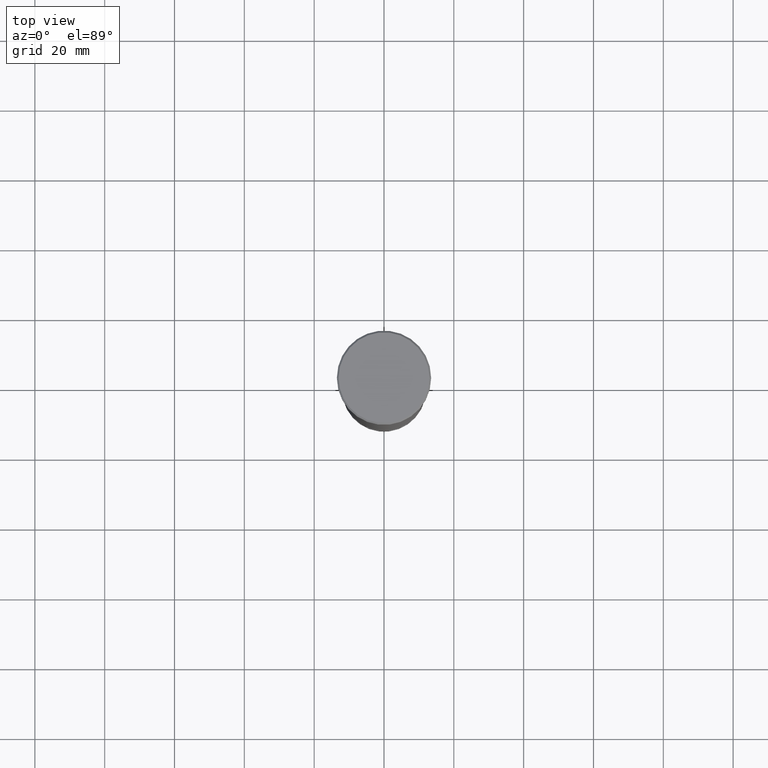
[diagram: clean part render]
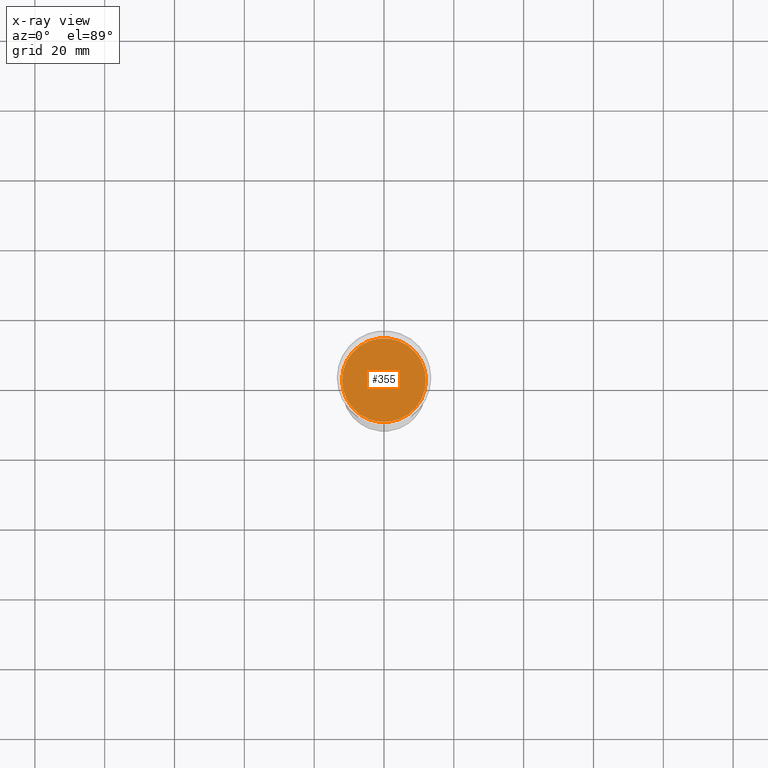
[diagram: x-ray — body ghosted, one internal face saturated and labeled with its STEP entity id]
A machine part, top view, then the same camera in x-ray: the body is ghosted and one INTERNAL B-rep face — a face not visible from any outside direction — is saturated and labeled: STEP entity #355.
In plain terms, the highlighted planar face has unit normal (0, 0, -1).
Its self-contained STEP definition (entity closure, byte-faithful):
#26 = AXIS2_PLACEMENT_3D ( 'NONE', #1033, #845, #395 ) ;
#33 = EDGE_LOOP ( 'NONE', ( #858, #1045 ) ) ;
#80 = DIRECTION ( 'NONE',  ( -1.000000000000000000, 0.000000000000000000, 0.000000000000000000 ) ) ;
#137 = CARTESIAN_POINT ( 'NONE',  ( -12.00000000000000178, 1.469576158976823947E-15, -41.99999999999999289 ) ) ;
#142 = VERTEX_POINT ( 'NONE', #890 ) ;
#324 = FACE_OUTER_BOUND ( 'NONE', #33, .T. ) ;
#344 = DIRECTION ( 'NONE',  ( 0.000000000000000000, 0.000000000000000000, -1.000000000000000000 ) ) ;
#346 = EDGE_CURVE ( 'NONE', #142, #592, #1012, .T. ) ;
#355 = ADVANCED_FACE ( 'NONE', ( #324 ), #936, .T. ) ;
#395 = DIRECTION ( 'NONE',  ( -1.000000000000000000, 0.000000000000000000, 0.000000000000000000 ) ) ;
#399 = EDGE_CURVE ( 'NONE', #592, #142, #606, .T. ) ;
#466 = CARTESIAN_POINT ( 'NONE',  ( 0.000000000000000000, 0.000000000000000000, -41.99999999999999289 ) ) ;
#512 = AXIS2_PLACEMENT_3D ( 'NONE', #965, #525, #80 ) ;
#525 = DIRECTION ( 'NONE',  ( 0.000000000000000000, 0.000000000000000000, -1.000000000000000000 ) ) ;
#592 = VERTEX_POINT ( 'NONE', #137 ) ;
#606 = CIRCLE ( 'NONE', #26, 12.00000000000000178 ) ;
#813 = AXIS2_PLACEMENT_3D ( 'NONE', #466, #344, #1122 ) ;
#845 = DIRECTION ( 'NONE',  ( 0.000000000000000000, 0.000000000000000000, -1.000000000000000000 ) ) ;
#858 = ORIENTED_EDGE ( 'NONE', *, *, #346, .T. ) ;
#890 = CARTESIAN_POINT ( 'NONE',  ( 12.00000000000000178, 0.000000000000000000, -41.99999999999999289 ) ) ;
#936 = PLANE ( 'NONE',  #813 ) ;
#965 = CARTESIAN_POINT ( 'NONE',  ( 0.000000000000000000, 0.000000000000000000, -41.99999999999999289 ) ) ;
#1012 = CIRCLE ( 'NONE', #512, 12.00000000000000178 ) ;
#1033 = CARTESIAN_POINT ( 'NONE',  ( 0.000000000000000000, 0.000000000000000000, -41.99999999999999289 ) ) ;
#1045 = ORIENTED_EDGE ( 'NONE', *, *, #399, .T. ) ;
#1122 = DIRECTION ( 'NONE',  ( -1.000000000000000000, 0.000000000000000000, -0.000000000000000000 ) ) ;